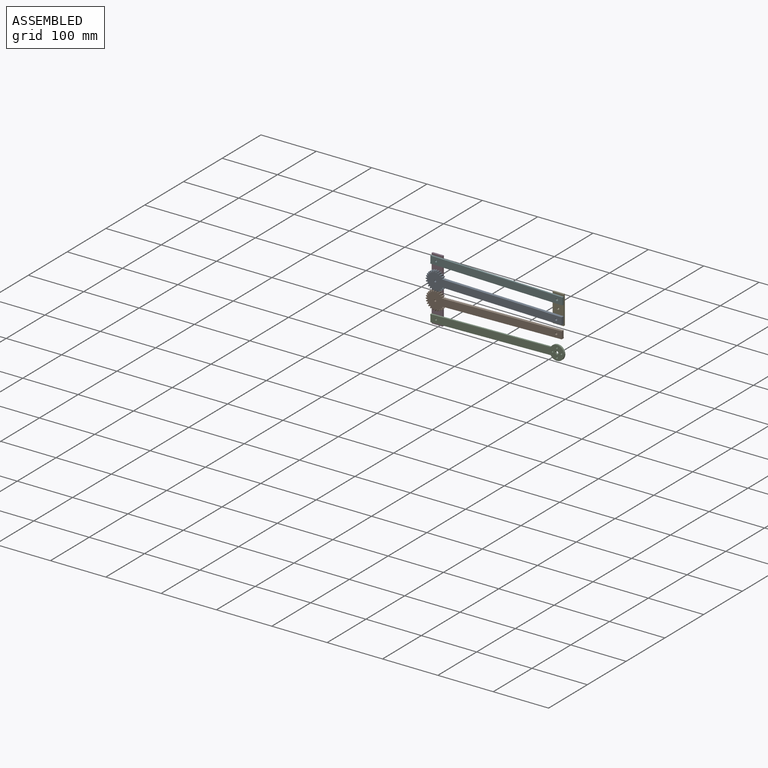
[diagram: assembled view]
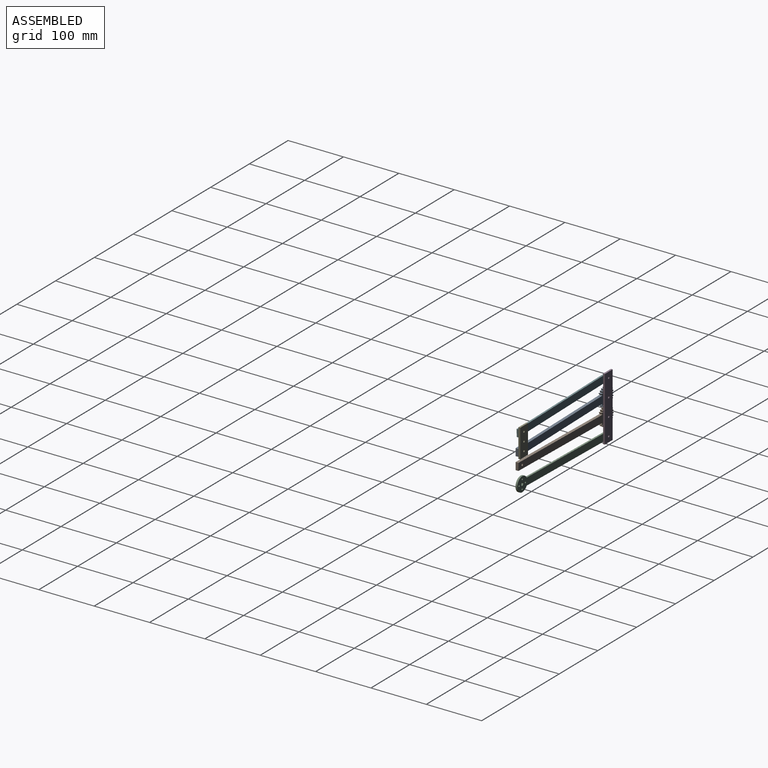
[diagram: assembled view, second angle]
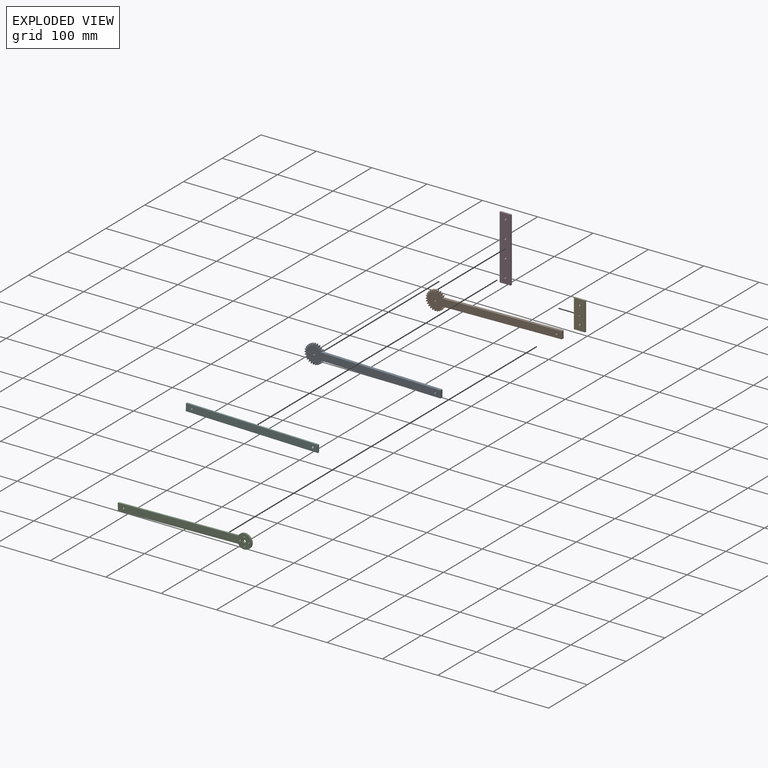
[diagram: exploded view]
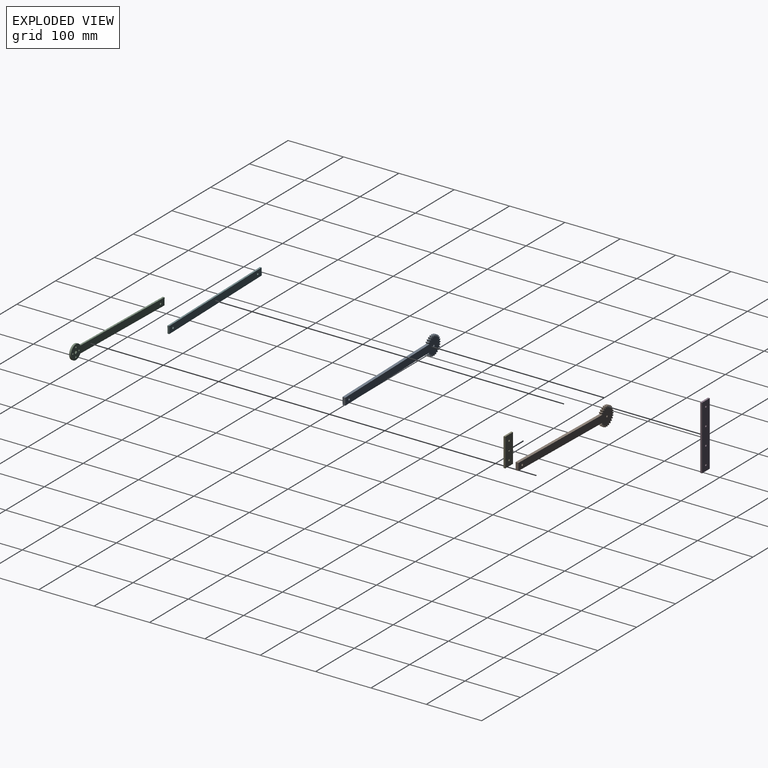
[diagram: exploded view, second angle]
ASSEMBLY  parts=6 mates=6
PART A: 140 faces, bbox 245.7x5.1x34.3 mm
  f0: cylinder r=17.14mm len=5.08mm, axis (0,1,0), area 0.9mm2, adj f23,f24,f35,f137
  f1: cylinder r=17.14mm len=5.08mm, axis (0,1,0), area 4.6mm2, adj f23,f24,f120,f132
  f2: cylinder r=17.14mm len=5.08mm, axis (0,1,0), area 4.6mm2, adj f23,f24,f127,f130
  f3: cylinder r=17.14mm len=5.08mm, axis (0,1,0), area 4.6mm2, adj f23,f24,f115,f122
  f4: cylinder r=17.14mm len=5.08mm, axis (0,1,0), area 4.6mm2, adj f23,f24,f110,f117
  f5: cylinder r=17.14mm len=5.08mm, axis (0,1,0), area 4.6mm2, adj f23,f24,f105,f112
  f6: cylinder r=17.14mm len=5.08mm, axis (0,1,0), area 4.6mm2, adj f23,f24,f95,f107
  f7: cylinder r=17.14mm len=5.08mm, axis (0,1,0), area 4.6mm2, adj f23,f24,f90,f102
  f8: cylinder r=17.14mm len=5.08mm, axis (0,1,0), area 4.6mm2, adj f23,f24,f97,f100
  f9: cylinder r=17.14mm len=5.08mm, axis (0,1,0), area 4.6mm2, adj f23,f24,f85,f92
  f10: cylinder r=17.14mm len=5.08mm, axis (0,1,0), area 4.6mm2, adj f23,f24,f80,f87
  f11: cylinder r=17.14mm len=5.08mm, axis (0,1,0), area 4.6mm2, adj f23,f24,f75,f82
  f12: cylinder r=17.14mm len=5.08mm, axis (0,1,0), area 4.6mm2, adj f23,f24,f65,f77
  f13: cylinder r=17.14mm len=5.08mm, axis (0,1,0), area 0.9mm2, adj f23,f24,f72,f135
  f14: cylinder r=17.14mm len=5.08mm, axis (0,1,0), area 4.6mm2, adj f23,f24,f60,f67
  f15: cylinder r=17.14mm len=5.08mm, axis (0,1,0), area 4.6mm2, adj f23,f24,f62,f70
  f16: cylinder r=17.14mm len=5.08mm, axis (0,1,0), area 4.6mm2, adj f23,f24,f57,f125
  f17: cylinder r=17.14mm len=5.08mm, axis (0,1,0), area 4.6mm2, adj f23,f24,f52,f55
  f18: cylinder r=17.14mm len=5.08mm, axis (0,1,0), area 4.6mm2, adj f23,f24,f47,f50
  f19: cylinder r=17.14mm len=5.08mm, axis (0,1,0), area 4.6mm2, adj f23,f24,f42,f45
  f20: cylinder r=17.14mm len=5.08mm, axis (0,1,0), area 4.6mm2, adj f23,f24,f25,f37
  f21: cylinder r=17.14mm len=5.08mm, axis (0,1,0), area 4.6mm2, adj f23,f24,f32,f40
  f22: cylinder r=17.14mm len=5.08mm, axis (0,1,0), area 4.6mm2, adj f23,f24,f27,f30
  f23: plane 245.75x34.27mm, normal (0,-1,0), area 3560.6mm2, adj f0,f1,f2,f3,f4,f5,f6,f7
  f24: plane 245.75x34.27mm, normal (0,1,0), area 3560.6mm2, adj f0,f1,f2,f3,f4,f5,f6,f7
  f25: extruded ~5.08x2.37mm, area 13mm2, adj f20,f23,f24,f28
  f26: cylinder r=14.29mm len=5.08mm, axis (0,1,0), area 2.2mm2, adj f23,f24,f28,f29
  f27: extruded ~5.08x2.31mm, area 13mm2, adj f22,f23,f24,f29
  f28: cylinder r=0.48mm len=5.08mm, axis (0,1,0), area 3.8mm2, adj f23,f24,f25,f26
  f29: cylinder r=0.48mm len=5.08mm, axis (0,1,0), area 3.8mm2, adj f23,f24,f26,f27
  f30: extruded ~5.08x2.08mm, area 13mm2, adj f22,f23,f24,f33
  f31: cylinder r=14.29mm len=5.08mm, axis (0,1,0), area 2.2mm2, adj f23,f24,f33,f34
  f32: extruded ~5.08x2.49mm, area 13mm2, adj f21,f23,f24,f34
  f33: cylinder r=0.48mm len=5.08mm, axis (0,1,0), area 3.8mm2, adj f23,f24,f30,f31
  f34: cylinder r=0.48mm len=5.08mm, axis (0,1,0), area 3.8mm2, adj f23,f24,f31,f32
  f35: extruded ~5.08x2.51mm, area 13mm2, adj f0,f23,f24,f38
  f36: cylinder r=14.29mm len=5.08mm, axis (0,1,0), area 2.2mm2, adj f23,f24,f38,f39
  f37: extruded ~5.08x1.98mm, area 13mm2, adj f20,f23,f24,f39
  f38: cylinder r=0.48mm len=5.08mm, axis (0,1,0), area 3.8mm2, adj f23,f24,f35,f36
  f39: cylinder r=0.48mm len=5.08mm, axis (0,1,0), area 3.8mm2, adj f23,f24,f36,f37
  f40: extruded ~5.08x1.9mm, area 13mm2, adj f21,f23,f24,f43
  f41: cylinder r=14.29mm len=5.08mm, axis (0,1,0), area 2.2mm2, adj f23,f24,f43,f44
  f42: extruded ~5.08x2.51mm, area 13mm2, adj f19,f23,f24,f44
  f43: cylinder r=0.48mm len=5.08mm, axis (0,1,0), area 3.8mm2, adj f23,f24,f40,f41
  f44: cylinder r=0.48mm len=5.08mm, axis (0,1,0), area 3.8mm2, adj f23,f24,f41,f42
  f45: extruded ~5.08x2.25mm, area 13mm2, adj f19,f23,f24,f48
  f46: cylinder r=14.29mm len=5.08mm, axis (0,1,0), area 2.2mm2, adj f23,f24,f48,f49
  f47: extruded ~5.08x2.38mm, area 13mm2, adj f18,f23,f24,f49
  f48: cylinder r=0.48mm len=5.08mm, axis (0,1,0), area 3.8mm2, adj f23,f24,f45,f46
  f49: cylinder r=0.48mm len=5.08mm, axis (0,1,0), area 3.8mm2, adj f23,f24,f46,f47
  f50: extruded ~5.08x2.46mm, area 13mm2, adj f18,f23,f24,f53
  f51: cylinder r=14.29mm len=5.08mm, axis (0,1,0), area 2.2mm2, adj f23,f24,f53,f54
  f52: extruded ~5.08x2.09mm, area 13mm2, adj f17,f23,f24,f54
  f53: cylinder r=0.48mm len=5.08mm, axis (0,1,0), area 3.8mm2, adj f23,f24,f50,f51
  f54: cylinder r=0.48mm len=5.08mm, axis (0,1,0), area 3.8mm2, adj f23,f24,f51,f52
  f55: extruded ~5.08x2.52mm, area 13mm2, adj f17,f23,f24,f58
  f56: cylinder r=14.29mm len=5.08mm, axis (0,1,0), area 2.2mm2, adj f23,f24,f58,f59
  f57: extruded ~5.08x1.88mm, area 13mm2, adj f16,f23,f24,f59
  f58: cylinder r=0.48mm len=5.08mm, axis (0,1,0), area 3.8mm2, adj f23,f24,f55,f56
  f59: cylinder r=0.48mm len=5.08mm, axis (0,1,0), area 3.8mm2, adj f23,f24,f56,f57
  f60: extruded ~5.08x2.31mm, area 13mm2, adj f14,f23,f24,f63
  f61: cylinder r=14.29mm len=5.08mm, axis (0,1,0), area 2.2mm2, adj f23,f24,f63,f64
  f62: extruded ~5.08x2.37mm, area 13mm2, adj f15,f23,f24,f64
  f63: cylinder r=0.48mm len=5.08mm, axis (0,1,0), area 3.8mm2, adj f23,f24,f60,f61
  f64: cylinder r=0.48mm len=5.08mm, axis (0,1,0), area 3.8mm2, adj f23,f24,f61,f62
  f65: extruded ~5.08x2.49mm, area 13mm2, adj f12,f23,f24,f68
  f66: cylinder r=14.29mm len=5.08mm, axis (0,1,0), area 2.2mm2, adj f23,f24,f68,f69
  f67: extruded ~5.08x2.08mm, area 13mm2, adj f14,f23,f24,f69
  f68: cylinder r=0.48mm len=5.08mm, axis (0,1,0), area 3.8mm2, adj f23,f24,f65,f66
  f69: cylinder r=0.48mm len=5.08mm, axis (0,1,0), area 3.8mm2, adj f23,f24,f66,f67
  f70: extruded ~5.08x1.98mm, area 13mm2, adj f15,f23,f24,f73
  f71: cylinder r=14.29mm len=5.08mm, axis (0,1,0), area 2.2mm2, adj f23,f24,f73,f74
  f72: extruded ~5.08x2.51mm, area 13mm2, adj f13,f23,f24,f74
  f73: cylinder r=0.48mm len=5.08mm, axis (0,1,0), area 3.8mm2, adj f23,f24,f70,f71
  f74: cylinder r=0.48mm len=5.08mm, axis (0,1,0), area 3.8mm2, adj f23,f24,f71,f72
  f75: extruded ~5.08x2.51mm, area 13mm2, adj f11,f23,f24,f78
  f76: cylinder r=14.29mm len=5.08mm, axis (0,1,0), area 2.2mm2, adj f23,f24,f78,f79
  f77: extruded ~5.08x1.9mm, area 13mm2, adj f12,f23,f24,f79
  f78: cylinder r=0.48mm len=5.08mm, axis (0,1,0), area 3.8mm2, adj f23,f24,f75,f76
  f79: cylinder r=0.48mm len=5.08mm, axis (0,1,0), area 3.8mm2, adj f23,f24,f76,f77
  f80: extruded ~5.08x2.38mm, area 13mm2, adj f10,f23,f24,f83
  f81: cylinder r=14.29mm len=5.08mm, axis (0,1,0), area 2.2mm2, adj f23,f24,f83,f84
  f82: extruded ~5.08x2.25mm, area 13mm2, adj f11,f23,f24,f84
  f83: cylinder r=0.48mm len=5.08mm, axis (0,1,0), area 3.8mm2, adj f23,f24,f80,f81
  f84: cylinder r=0.48mm len=5.08mm, axis (0,1,0), area 3.8mm2, adj f23,f24,f81,f82
  f85: extruded ~5.08x2.09mm, area 13mm2, adj f9,f23,f24,f88
  f86: cylinder r=14.29mm len=5.08mm, axis (0,1,0), area 2.2mm2, adj f23,f24,f88,f89
  f87: extruded ~5.08x2.46mm, area 13mm2, adj f10,f23,f24,f89
  f88: cylinder r=0.48mm len=5.08mm, axis (0,1,0), area 3.8mm2, adj f23,f24,f85,f86
  f89: cylinder r=0.48mm len=5.08mm, axis (0,1,0), area 3.8mm2, adj f23,f24,f86,f87
  f90: extruded ~5.08x1.88mm, area 13mm2, adj f7,f23,f24,f93
  f91: cylinder r=14.29mm len=5.08mm, axis (0,1,0), area 2.2mm2, adj f23,f24,f93,f94
  f92: extruded ~5.08x2.52mm, area 13mm2, adj f9,f23,f24,f94
  f93: cylinder r=0.48mm len=5.08mm, axis (0,1,0), area 3.8mm2, adj f23,f24,f90,f91
  f94: cylinder r=0.48mm len=5.08mm, axis (0,1,0), area 3.8mm2, adj f23,f24,f91,f92
  f95: extruded ~5.08x2.46mm, area 13mm2, adj f6,f23,f24,f98
  f96: cylinder r=14.29mm len=5.08mm, axis (0,1,0), area 2.2mm2, adj f23,f24,f98,f99
  f97: extruded ~5.08x2.16mm, area 13mm2, adj f8,f23,f24,f99
  f98: cylinder r=0.48mm len=5.08mm, axis (0,1,0), area 3.8mm2, adj f23,f24,f95,f96
  f99: cylinder r=0.48mm len=5.08mm, axis (0,1,0), area 3.8mm2, adj f23,f24,f96,f97
  f100: extruded ~5.08x2.24mm, area 13mm2, adj f8,f23,f24,f103
  f101: cylinder r=14.29mm len=5.08mm, axis (0,1,0), area 2.2mm2, adj f23,f24,f103,f104
  f102: extruded ~5.08x2.42mm, area 13mm2, adj f7,f23,f24,f104
  f103: cylinder r=0.48mm len=5.08mm, axis (0,1,0), area 3.8mm2, adj f23,f24,f100,f101
  f104: cylinder r=0.48mm len=5.08mm, axis (0,1,0), area 3.8mm2, adj f23,f24,f101,f102
  f105: extruded ~5.08x2.52mm, area 13mm2, adj f5,f23,f24,f108
  f106: cylinder r=14.29mm len=5.08mm, axis (0,1,0), area 2.2mm2, adj f23,f24,f108,f109
  f107: extruded ~5.08x1.79mm, area 13mm2, adj f6,f23,f24,f109
  f108: cylinder r=0.48mm len=5.08mm, axis (0,1,0), area 3.8mm2, adj f23,f24,f105,f106
  f109: cylinder r=0.48mm len=5.08mm, axis (0,1,0), area 3.8mm2, adj f23,f24,f106,f107
  f110: extruded ~5.08x2.42mm, area 13mm2, adj f4,f23,f24,f113
  f111: cylinder r=14.29mm len=5.08mm, axis (0,1,0), area 2.2mm2, adj f23,f24,f113,f114
  f112: extruded ~5.08x2.18mm, area 13mm2, adj f5,f23,f24,f114
  f113: cylinder r=0.48mm len=5.08mm, axis (0,1,0), area 3.8mm2, adj f23,f24,f110,f111
  f114: cylinder r=0.48mm len=5.08mm, axis (0,1,0), area 3.8mm2, adj f23,f24,f111,f112
  f115: extruded ~5.08x2.18mm, area 13mm2, adj f3,f23,f24,f118
  f116: cylinder r=14.29mm len=5.08mm, axis (0,1,0), area 2.2mm2, adj f23,f24,f118,f119
  f117: extruded ~5.08x2.42mm, area 13mm2, adj f4,f23,f24,f119
  f118: cylinder r=0.48mm len=5.08mm, axis (0,1,0), area 3.8mm2, adj f23,f24,f115,f116
  f119: cylinder r=0.48mm len=5.08mm, axis (0,1,0), area 3.8mm2, adj f23,f24,f116,f117
  f120: extruded ~5.08x1.79mm, area 13mm2, adj f1,f23,f24,f123
  f121: cylinder r=14.29mm len=5.08mm, axis (0,1,0), area 2.2mm2, adj f23,f24,f123,f124
  f122: extruded ~5.08x2.52mm, area 13mm2, adj f3,f23,f24,f124
  f123: cylinder r=0.48mm len=5.08mm, axis (0,1,0), area 3.8mm2, adj f23,f24,f120,f121
  f124: cylinder r=0.48mm len=5.08mm, axis (0,1,0), area 3.8mm2, adj f23,f24,f121,f122
  f125: extruded ~5.08x2.42mm, area 13mm2, adj f16,f23,f24,f128
  f126: cylinder r=14.29mm len=5.08mm, axis (0,1,0), area 2.2mm2, adj f23,f24,f128,f129
  f127: extruded ~5.08x2.24mm, area 13mm2, adj f2,f23,f24,f129
  f128: cylinder r=0.48mm len=5.08mm, axis (0,1,0), area 3.8mm2, adj f23,f24,f125,f126
  f129: cylinder r=0.48mm len=5.08mm, axis (0,1,0), area 3.8mm2, adj f23,f24,f126,f127
  f130: extruded ~5.08x2.16mm, area 13mm2, adj f2,f23,f24,f133
  f131: cylinder r=14.29mm len=5.08mm, axis (0,1,0), area 2.2mm2, adj f23,f24,f133,f134
  f132: extruded ~5.08x2.46mm, area 13mm2, adj f1,f23,f24,f134
  f133: cylinder r=0.48mm len=5.08mm, axis (0,1,0), area 3.8mm2, adj f23,f24,f130,f131
  f134: cylinder r=0.48mm len=5.08mm, axis (0,1,0), area 3.8mm2, adj f23,f24,f131,f132
  f135: plane 212.77x5.08mm, normal (0,0,1), area 1080.8mm2, adj f13,f23,f24,f136
  f136: plane 13.15x5.08mm, normal (1,0,0), area 66.8mm2, adj f23,f24,f135,f137
  f137: plane 212.77x5.08mm, normal (0,0,-1), area 1080.8mm2, adj f0,f23,f24,f136
  f138: cylinder r=2mm len=5.08mm, axis (0,1,0), area 63.8mm2, adj f23,f24
  f139: cylinder r=1.75mm len=5.08mm, axis (0,1,0), area 55.9mm2, adj f23,f24
PART B: same geometry as A
PART C: 17 faces, bbox 241.7x3.2x26.2 mm
  f0: plane 3.18x2.5mm, normal (-0.87,0,-0.5), area 9.2mm2, adj f1,f14,f15,f16
  f1: plane 3.18x2.89mm, normal (0,0,-1), area 9.2mm2, adj f0,f2,f15,f16
  f2: plane 3.18x2.5mm, normal (0.87,0,-0.5), area 9.2mm2, adj f1,f3,f15,f16
  f3: plane 3.18x2.5mm, normal (0.87,0,0.5), area 9.2mm2, adj f2,f4,f15,f16
  f4: plane 3.18x2.89mm, normal (0,0,1), area 9.2mm2, adj f3,f14,f15,f16
  f5: plane 217.29x3.18mm, normal (0,0,1), area 689.9mm2, adj f6,f13,f15,f16
  f6: cylinder r=13.08mm len=26.17mm, axis (0,-1,0), area 217.3mm2, adj f5,f7,f15,f16
  f7: plane 217.29x3.18mm, normal (0,0,-1), area 689.9mm2, adj f6,f13,f15,f16
  f8: cylinder r=1.5mm len=3.18mm, axis (0,-1,0), area 29.9mm2, adj f15,f16
  f9: cylinder r=1.5mm len=3.18mm, axis (0,-1,0), area 29.9mm2, adj f15,f16
  f10: cylinder r=1.5mm len=3.18mm, axis (0,-1,0), area 29.9mm2, adj f15,f16
  f11: cylinder r=1.5mm len=3.18mm, axis (0,-1,0), area 29.9mm2, adj f15,f16
  f12: cylinder r=1.75mm len=3.5mm, axis (0,-1,0), area 34.9mm2, adj f15,f16
  f13: plane 13.15x3.18mm, normal (-1,0,0), area 41.7mm2, adj f5,f7,f15,f16
  f14: plane 3.18x2.5mm, normal (-0.87,0,0.5), area 9.2mm2, adj f0,f4,f15,f16
  f15: plane 241.68x26.17mm, normal (0,1,0), area 3319mm2, adj f0,f1,f2,f3,f4,f5,f6,f7
  f16: plane 241.68x26.17mm, normal (0,-1,0), area 3319mm2, adj f0,f1,f2,f3,f4,f5,f6,f7
PART D: 10 faces, bbox 20x3.2x115.3 mm
  f0: plane 20x3.18mm, normal (0,0,-1), area 63.5mm2, adj f1,f7,f8,f9
  f1: plane 115.25x3.18mm, normal (1,0,0), area 365.9mm2, adj f0,f2,f8,f9
  f2: plane 20x3.18mm, normal (0,0,1), area 63.5mm2, adj f1,f7,f8,f9
  f3: cylinder r=1.75mm len=3.5mm, axis (0,1,0), area 34.9mm2, adj f8,f9
  f4: cylinder r=1.75mm len=3.5mm, axis (0,1,0), area 34.9mm2, adj f8,f9
  f5: cylinder r=1.75mm len=3.5mm, axis (0,1,0), area 34.9mm2, adj f8,f9
  f6: cylinder r=1.75mm len=3.5mm, axis (0,1,0), area 34.9mm2, adj f8,f9
  f7: plane 115.25x3.18mm, normal (-1,0,0), area 365.9mm2, adj f0,f2,f8,f9
  f8: plane 115.25x20mm, normal (0,-1,0), area 2266.5mm2, adj f0,f1,f2,f3,f4,f5,f6,f7
  f9: plane 115.25x20mm, normal (0,1,0), area 2266.5mm2, adj f0,f1,f2,f3,f4,f5,f6,f7
PART E: 9 faces, bbox 20x3.2x51.8 mm
  f0: plane 20x3.18mm, normal (0,0,-1), area 63.5mm2, adj f1,f5,f7,f8
  f1: plane 51.75x3.18mm, normal (-1,0,0), area 164.3mm2, adj f0,f2,f7,f8
  f2: plane 20x3.18mm, normal (0,0,1), area 63.5mm2, adj f1,f5,f7,f8
  f3: cylinder r=1.75mm len=3.5mm, axis (0,-1,0), area 34.9mm2, adj f7,f8
  f4: cylinder r=1.75mm len=3.5mm, axis (0,-1,0), area 34.9mm2, adj f7,f8
  f5: plane 51.75x3.18mm, normal (1,0,0), area 164.3mm2, adj f0,f2,f7,f8
  f6: cylinder r=1.75mm len=3.5mm, axis (0,-1,0), area 34.9mm2, adj f7,f8
  f7: plane 51.75x20mm, normal (0,1,0), area 1006.1mm2, adj f0,f1,f2,f3,f4,f5,f6
  f8: plane 51.75x20mm, normal (0,-1,0), area 1006.1mm2, adj f0,f1,f2,f3,f4,f5,f6
PART F: 8 faces, bbox 238.6x3.2x13.1 mm
  f0: plane 238.6x3.18mm, normal (0,0,1), area 757.6mm2, adj f1,f4,f6,f7
  f1: plane 13.15x3.18mm, normal (1,0,0), area 41.7mm2, adj f0,f2,f6,f7
  f2: plane 238.6x3.18mm, normal (0,0,-1), area 757.6mm2, adj f1,f4,f6,f7
  f3: cylinder r=2mm len=4mm, axis (0,-1,0), area 39.9mm2, adj f6,f7
  f4: plane 13.15x3.18mm, normal (-1,0,0), area 41.7mm2, adj f0,f2,f6,f7
  f5: cylinder r=1.75mm len=3.5mm, axis (0,-1,0), area 34.9mm2, adj f6,f7
  f6: plane 238.6x13.15mm, normal (0,1,0), area 3114.6mm2, adj f0,f1,f2,f3,f4,f5
  f7: plane 238.6x13.15mm, normal (0,-1,0), area 3114.6mm2, adj f0,f1,f2,f3,f4,f5
PLACE A rot(axis=(0,1,0),1.1deg) t=(-199.32,-3.18,59.86)mm
PLACE B rot(axis=(0,-1,0),1.1deg) t=(-199.32,-3.17,28.11)mm
PLACE C rot(axis=(0,-1,0),1.1deg) t=(-199.32,-12.7,-3.64)mm
PLACE D rot(axis=(0,-1,0),180deg) t=(-247.91,0,83.5)mm
PLACE E t=(19.24,-3.18,55.59)mm
PLACE F rot(axis=(0,1,0),1.1deg) t=(-199.32,-9.53,91.61)mm
MATE revolute D.f3 <-> F.f5  axis (0,-1,0) through (-199.32,-3.18,91.61)mm
MATE revolute C.f12 <-> D.f6  axis (0,1,0) through (-199.32,-3.17,-3.64)mm
MATE revolute A.f139 <-> D.f4  axis (0,1,0) through (-199.32,-3.18,59.86)mm
MATE revolute F.f3 <-> E.f3  axis (0,1,0) through (19.24,-3.18,87.34)mm
MATE revolute B.f0 <-> D.f5  axis (0,1,0) through (-199.32,-3.17,28.11)mm
MATE revolute A.f138 <-> E.f6  axis (0,1,0) through (19.24,-3.18,55.59)mm
